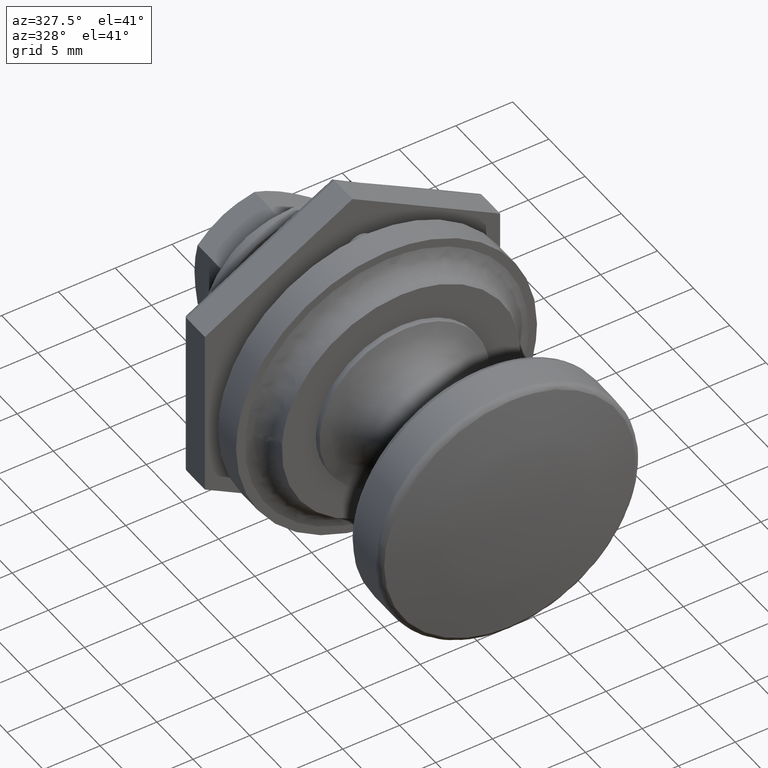
[diagram: clean part render]
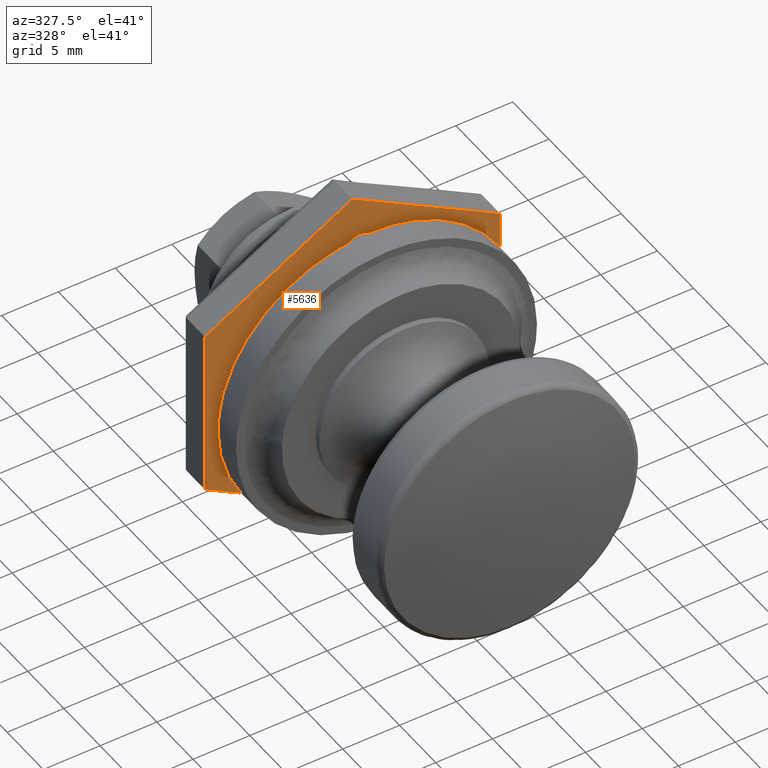
[diagram: same view with one face highlighted and labeled with its STEP entity id]
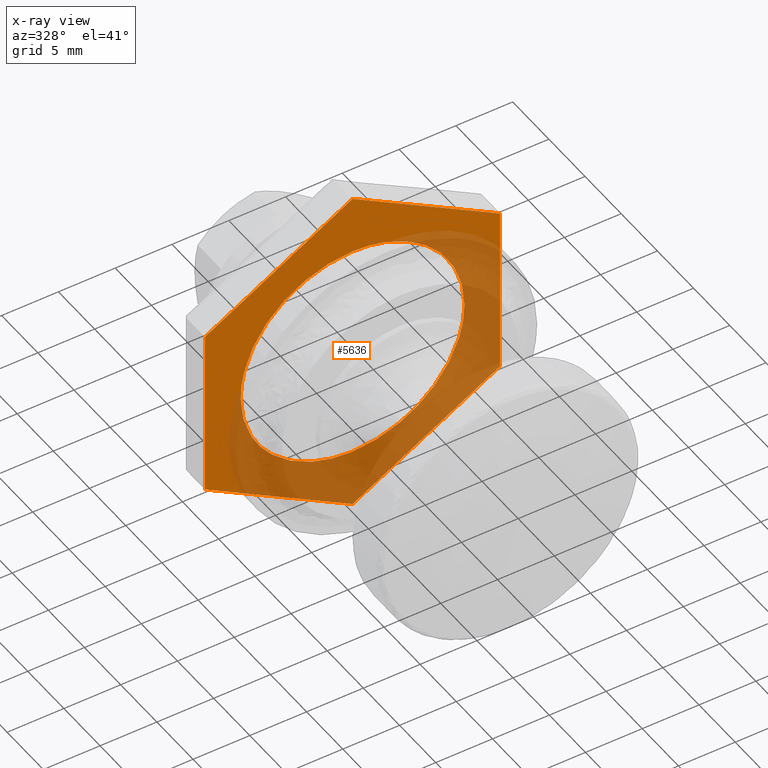
[diagram: x-ray of the same camera — body ghosted, the highlighted face saturated]
A machine part, auxiliary view. The second image highlights one B-rep face of the part: STEP entity #5636.
The next image is the same camera in x-ray: the body ghosted, the highlighted face saturated — about 54% of this face is hidden behind the body in this view.
In plain terms, the highlighted face is a freeform B-spline surface patch.
Its self-contained STEP definition (entity closure, byte-faithful):
#4228=CARTESIAN_POINT('',(2.199999999999920,-7.210708439410645,-6.710304105745497));
#4229=VERTEX_POINT('',#4228);
#4235=CARTESIAN_POINT('',(2.199999999999920,-9.850000000000184,0.000000531367559));
#4236=VERTEX_POINT('',#4235);
#4237=CARTESIAN_POINT('',(2.199999999999920,-7.210708439410645,-6.710304105745497));
#4238=CARTESIAN_POINT('',(2.199999999999921,-7.629859087754191,-6.259997577681771));
#4239=CARTESIAN_POINT('',(2.199999999999923,-8.230257595813990,-5.479439061202777));
#4240=CARTESIAN_POINT('',(2.199999999999916,-8.856031389498964,-4.351332857120872));
#4241=CARTESIAN_POINT('',(2.199999999999929,-9.309985937470694,-3.289561031465406));
#4242=CARTESIAN_POINT('',(2.199999999999902,-9.725871999400928,-1.864752373881289));
#4243=CARTESIAN_POINT('',(2.199999999999936,-9.850115617397563,-0.692095281154101));
#4244=CARTESIAN_POINT('',(2.199999999999920,-9.850000000000184,0.000000531367559));
#4245=B_SPLINE_CURVE_WITH_KNOTS('',3,(#4237,#4238,#4239,#4240,#4241,#4242,#4243,#4244),.UNSPECIFIED.,.F.,.U.,(4,1,1,1,1,4),(4.189981E-009,1.845566875162738,2.941376493721936,3.864151227206839,5.306003836947721,7.382267488085274),.UNSPECIFIED.);
#4246=EDGE_CURVE('',#4229,#4236,#4245,.T.);
#4248=CARTESIAN_POINT('',(2.199999999999920,0.0,9.850000000000199));
#4249=VERTEX_POINT('',#4248);
#4250=CARTESIAN_POINT('',(2.199999999999920,-9.850000000000184,0.000000531367559));
#4251=CARTESIAN_POINT('',(2.199999999999920,-9.850003374445013,0.342484568288779));
#4252=CARTESIAN_POINT('',(2.199999999999919,-9.807943558521034,1.148337744654632));
#4253=CARTESIAN_POINT('',(2.199999999999922,-9.607663580921690,2.281978709646564));
#4254=CARTESIAN_POINT('',(2.199999999999908,-9.282294930887799,3.342759506026152));
#4255=CARTESIAN_POINT('',(2.199999999999927,-8.862460964486850,4.347635311337192));
#4256=CARTESIAN_POINT('',(2.199999999999911,-8.232414543837141,5.475951487209574));
#4257=CARTESIAN_POINT('',(2.199999999999930,-7.278549943329423,6.706039709174019));
#4258=CARTESIAN_POINT('',(2.199999999999920,-6.205806046420499,7.690340454478936));
#4259=CARTESIAN_POINT('',(2.199999999999924,-5.209785649904428,8.378131517235261));
#4260=CARTESIAN_POINT('',(2.199999999999888,-4.257321131166179,8.906199238839911));
#4261=CARTESIAN_POINT('',(2.199999999999941,-3.287253647669747,9.308016141529810));
#4262=CARTESIAN_POINT('',(2.199999999999895,-2.240359395396449,9.608114873732479));
#4263=CARTESIAN_POINT('',(2.200000000000027,-1.188623844883008,9.800601225678896));
#4264=CARTESIAN_POINT('',(2.199999999999776,-0.423069361796126,9.850014686329800));
#4265=CARTESIAN_POINT('',(2.199999999999920,0.0,9.850000000000199));
#4266=B_SPLINE_CURVE_WITH_KNOTS('',3,(#4250,#4251,#4252,#4253,#4254,#4255,#4256,#4257,#4258,#4259,#4260,#4261,#4262,#4263,#4264,#4265),.UNSPECIFIED.,.F.,.U.,(4,1,1,1,1,1,1,1,1,1,1,1,1,4),(0.000000015028965,1.027454953366137,2.417557123542592,3.445018976222833,4.351604889787524,5.681261250099821,7.313123178240373,9.005392308978836,10.032861296351211,10.939444875424330,12.269106819407090,13.175690398635769,14.203159385922900,15.472367791058550),.UNSPECIFIED.);
#4267=EDGE_CURVE('',#4236,#4249,#4266,.T.);
#4269=CARTESIAN_POINT('',(2.199999999999920,9.850000000000183,-0.000000531367204));
#4270=VERTEX_POINT('',#4269);
#4271=CARTESIAN_POINT('',(2.199999999999920,0.0,9.850000000000199));
#4272=CARTESIAN_POINT('',(2.199999999999919,0.523804015364513,9.850037138241266));
#4273=CARTESIAN_POINT('',(2.199999999999924,1.450518973409347,9.775895278306026));
#4274=CARTESIAN_POINT('',(2.199999999999919,2.730615347546405,9.488436057332073));
#4275=CARTESIAN_POINT('',(2.199999999999910,4.024107261076117,9.030128937188989));
#4276=CARTESIAN_POINT('',(2.199999999999949,5.221193369469375,8.394994749295414));
#4277=CARTESIAN_POINT('',(2.199999999999889,6.488383369754795,7.461178312943315));
#4278=CARTESIAN_POINT('',(2.199999999999961,7.518428239692494,6.431179446533382));
#4279=CARTESIAN_POINT('',(2.199999999999835,8.319474087208503,5.315620966185537));
#4280=CARTESIAN_POINT('',(2.200000000000115,8.857289054872952,4.345506079801479));
#4281=CARTESIAN_POINT('',(2.199999999999791,9.313609838454179,3.290020670334882));
#4282=CARTESIAN_POINT('',(2.200000000000030,9.731243833438372,1.833282246364909));
#4283=CARTESIAN_POINT('',(2.199999999999878,9.850084856277938,0.664831786486795));
#4284=CARTESIAN_POINT('',(2.199999999999920,9.850000000000183,-0.000000531367204));
#4285=B_SPLINE_CURVE_WITH_KNOTS('',3,(#4271,#4272,#4273,#4274,#4275,#4276,#4277,#4278,#4279,#4280,#4281,#4282,#4283,#4284),.UNSPECIFIED.,.F.,.U.,(4,1,1,1,1,1,1,1,1,1,1,4),(0.000000014972604,1.571407520442524,2.780187121640605,3.928531463601704,5.681261470100813,6.829601567026780,8.642765042229613,10.032861684577391,10.939445298936970,11.966911270228850,13.477884090425430,15.472368390034450),.UNSPECIFIED.);
#4286=EDGE_CURVE('',#4249,#4270,#4285,.T.);
#4288=CARTESIAN_POINT('',(2.199999999999920,7.111717699865622,-6.815128316622708));
#4289=VERTEX_POINT('',#4288);
#4290=CARTESIAN_POINT('',(2.199999999999920,9.850000000000183,-0.000000531367204));
#4291=CARTESIAN_POINT('',(2.199999999999919,9.850053789016180,-0.588005807731696));
#4292=CARTESIAN_POINT('',(2.199999999999927,9.754941969654340,-1.646394851046129));
#4293=CARTESIAN_POINT('',(2.199999999999912,9.394147783709483,-3.055052944479935));
#4294=CARTESIAN_POINT('',(2.199999999999931,8.852469765842329,-4.403311864642140));
#4295=CARTESIAN_POINT('',(2.199999999999921,8.114674932379678,-5.658792558070902));
#4296=CARTESIAN_POINT('',(2.199999999999918,7.437192758363732,-6.475506231067271));
#4297=CARTESIAN_POINT('',(2.199999999999920,7.111717699865622,-6.815128316622708));
#4298=B_SPLINE_CURVE_WITH_KNOTS('',3,(#4290,#4291,#4292,#4293,#4294,#4295,#4296,#4297),.UNSPECIFIED.,.F.,.U.,(4,1,1,1,1,4),(4.259939E-009,1.764010405684770,3.175224693492534,4.351221705115793,6.115237822526340,7.526446394349969),.UNSPECIFIED.);
#4299=EDGE_CURVE('',#4270,#4289,#4298,.T.);
#4414=CARTESIAN_POINT('',(2.199999999999920,0.0,-9.850000000000199));
#4415=VERTEX_POINT('',#4414);
#4416=CARTESIAN_POINT('',(2.199999999999920,7.111717699865622,-6.815128316622708));
#4417=CARTESIAN_POINT('',(2.199999999999921,6.753818058409637,-7.188654766812124));
#4418=CARTESIAN_POINT('',(2.199999999999917,6.149427626457608,-7.727186807311698));
#4419=CARTESIAN_POINT('',(2.199999999999922,5.178372375174203,-8.398694494232434));
#4420=CARTESIAN_POINT('',(2.199999999999921,4.307325908646177,-8.879293832612170));
#4421=CARTESIAN_POINT('',(2.199999999999919,3.313759165897466,-9.295906690236064));
#4422=CARTESIAN_POINT('',(2.199999999999932,2.400159327744562,-9.568440776932638));
#4423=CARTESIAN_POINT('',(2.199999999999890,1.282923217282061,-9.789538545733032));
#4424=CARTESIAN_POINT('',(2.199999999999954,0.517314477860728,-9.850035340172132));
#4425=CARTESIAN_POINT('',(2.199999999999920,0.0,-9.850000000000199));
#4426=B_SPLINE_CURVE_WITH_KNOTS('',3,(#4416,#4417,#4418,#4419,#4420,#4421,#4422,#4423,#4424,#4425),.UNSPECIFIED.,.F.,.U.,(4,1,1,1,1,1,1,4),(4.303055E-009,1.551937347920079,2.421023319824180,3.538423903288677,4.531654691123368,5.649052213189447,6.393983978963151,7.945921322580660),.UNSPECIFIED.);
#4427=EDGE_CURVE('',#4289,#4415,#4426,.T.);
#4429=CARTESIAN_POINT('',(2.199999999999920,0.0,-9.850000000000199));
#4430=CARTESIAN_POINT('',(2.199999999999916,-0.379221448178228,-9.850005368035966));
#4431=CARTESIAN_POINT('',(2.199999999999936,-1.221941487549913,-9.801291365307835));
#4432=CARTESIAN_POINT('',(2.199999999999898,-2.384268446244940,-9.582469966438014));
#4433=CARTESIAN_POINT('',(2.199999999999933,-3.469823701533434,-9.237109139903021));
#4434=CARTESIAN_POINT('',(2.199999999999923,-4.572320229998021,-8.757099513691914));
#4435=CARTESIAN_POINT('',(2.199999999999890,-5.875833024352549,-7.971833754055585));
#4436=CARTESIAN_POINT('',(2.199999999999930,-6.765840323647598,-7.188473362968641));
#4437=CARTESIAN_POINT('',(2.199999999999920,-7.210708439410645,-6.710304105745497));
#4438=B_SPLINE_CURVE_WITH_KNOTS('',3,(#4429,#4430,#4431,#4432,#4433,#4434,#4435,#4436,#4437),.UNSPECIFIED.,.F.,.U.,(4,1,1,1,1,1,4),(4.274101E-009,1.137667321576637,2.528158614457416,3.539425162447605,4.550676023979296,6.130779918244983,8.090101182151345),.UNSPECIFIED.);
#4439=EDGE_CURVE('',#4415,#4229,#4438,.T.);
#5466=CARTESIAN_POINT('',(2.200000000000000,0.000000999999884,15.011107000000200));
#5467=VERTEX_POINT('',#5466);
#5474=CARTESIAN_POINT('',(2.200000000000000,13.0,7.505554000000100));
#5475=VERTEX_POINT('',#5474);
#5481=CARTESIAN_POINT('',(2.200000000000000,13.0,7.505554000000100));
#5482=CARTESIAN_POINT('',(2.200000000000000,0.000000999999884,15.011107000000200));
#5483=QUASI_UNIFORM_CURVE('',1,(#5481,#5482),.UNSPECIFIED.,.F.,.U.);
#5484=EDGE_CURVE('',#5475,#5467,#5483,.T.);
#5496=CARTESIAN_POINT('',(2.200000000000000,13.0,-7.505552999999790));
#5497=VERTEX_POINT('',#5496);
#5503=CARTESIAN_POINT('',(2.200000000000000,13.0,-7.505552999999790));
#5504=CARTESIAN_POINT('',(2.200000000000000,13.0,7.505554000000100));
#5505=QUASI_UNIFORM_CURVE('',1,(#5503,#5504),.UNSPECIFIED.,.F.,.U.);
#5506=EDGE_CURVE('',#5497,#5475,#5505,.T.);
#5518=CARTESIAN_POINT('',(2.200000000000000,0.0,-15.011106999999800));
#5519=VERTEX_POINT('',#5518);
#5525=CARTESIAN_POINT('',(2.200000000000000,0.0,-15.011106999999800));
#5526=CARTESIAN_POINT('',(2.200000000000000,13.0,-7.505552999999790));
#5527=QUASI_UNIFORM_CURVE('',1,(#5525,#5526),.UNSPECIFIED.,.F.,.U.);
#5528=EDGE_CURVE('',#5519,#5497,#5527,.T.);
#5540=CARTESIAN_POINT('',(2.200000000000000,-13.0,-7.505552999999790));
#5541=VERTEX_POINT('',#5540);
#5547=CARTESIAN_POINT('',(2.200000000000000,-13.0,-7.505552999999790));
#5548=CARTESIAN_POINT('',(2.200000000000000,0.0,-15.011106999999800));
#5549=QUASI_UNIFORM_CURVE('',1,(#5547,#5548),.UNSPECIFIED.,.F.,.U.);
#5550=EDGE_CURVE('',#5541,#5519,#5549,.T.);
#5562=CARTESIAN_POINT('',(2.200000000000000,-13.0,7.505553000000110));
#5563=VERTEX_POINT('',#5562);
#5569=CARTESIAN_POINT('',(2.200000000000000,-13.0,7.505553000000110));
#5570=CARTESIAN_POINT('',(2.200000000000000,-13.0,-7.505552999999790));
#5571=QUASI_UNIFORM_CURVE('',1,(#5569,#5570),.UNSPECIFIED.,.F.,.U.);
#5572=EDGE_CURVE('',#5563,#5541,#5571,.T.);
#5585=CARTESIAN_POINT('',(2.200000000000000,0.000000999999884,15.011107000000200));
#5586=CARTESIAN_POINT('',(2.200000000000000,-13.0,7.505553000000110));
#5587=QUASI_UNIFORM_CURVE('',1,(#5585,#5586),.UNSPECIFIED.,.F.,.U.);
#5588=EDGE_CURVE('',#5467,#5563,#5587,.T.);
#5615=CARTESIAN_POINT('',(2.199999999999920,-14.298699949606959,16.510717094765450));
#5616=CARTESIAN_POINT('',(2.199999999999920,14.298700646981301,16.510717094765450));
#5617=CARTESIAN_POINT('',(2.199999999999920,-14.298699949606959,-16.510717363184568));
#5618=CARTESIAN_POINT('',(2.199999999999920,14.298700646981301,-16.510717363184568));
#5619=B_SPLINE_SURFACE_WITH_KNOTS('',1,1,((#5615,#5617),(#5616,#5618)),.UNSPECIFIED.,.F.,.F.,.U.,(2,2),(2,2),(0.0,28.597400596588258),(0.0,33.021434457950022),.UNSPECIFIED.);
#5620=ORIENTED_EDGE('',*,*,#5588,.F.);
#5621=ORIENTED_EDGE('',*,*,#5484,.F.);
#5622=ORIENTED_EDGE('',*,*,#5506,.F.);
#5623=ORIENTED_EDGE('',*,*,#5528,.F.);
#5624=ORIENTED_EDGE('',*,*,#5550,.F.);
#5625=ORIENTED_EDGE('',*,*,#5572,.F.);
#5626=EDGE_LOOP('',(#5620,#5621,#5622,#5623,#5624,#5625));
#5627=FACE_OUTER_BOUND('',#5626,.T.);
#5628=ORIENTED_EDGE('',*,*,#4286,.F.);
#5629=ORIENTED_EDGE('',*,*,#4267,.F.);
#5630=ORIENTED_EDGE('',*,*,#4246,.F.);
#5631=ORIENTED_EDGE('',*,*,#4439,.F.);
#5632=ORIENTED_EDGE('',*,*,#4427,.F.);
#5633=ORIENTED_EDGE('',*,*,#4299,.F.);
#5634=EDGE_LOOP('',(#5628,#5629,#5630,#5631,#5632,#5633));
#5635=FACE_BOUND('',#5634,.T.);
#5636=ADVANCED_FACE('',(#5627,#5635),#5619,.T.);